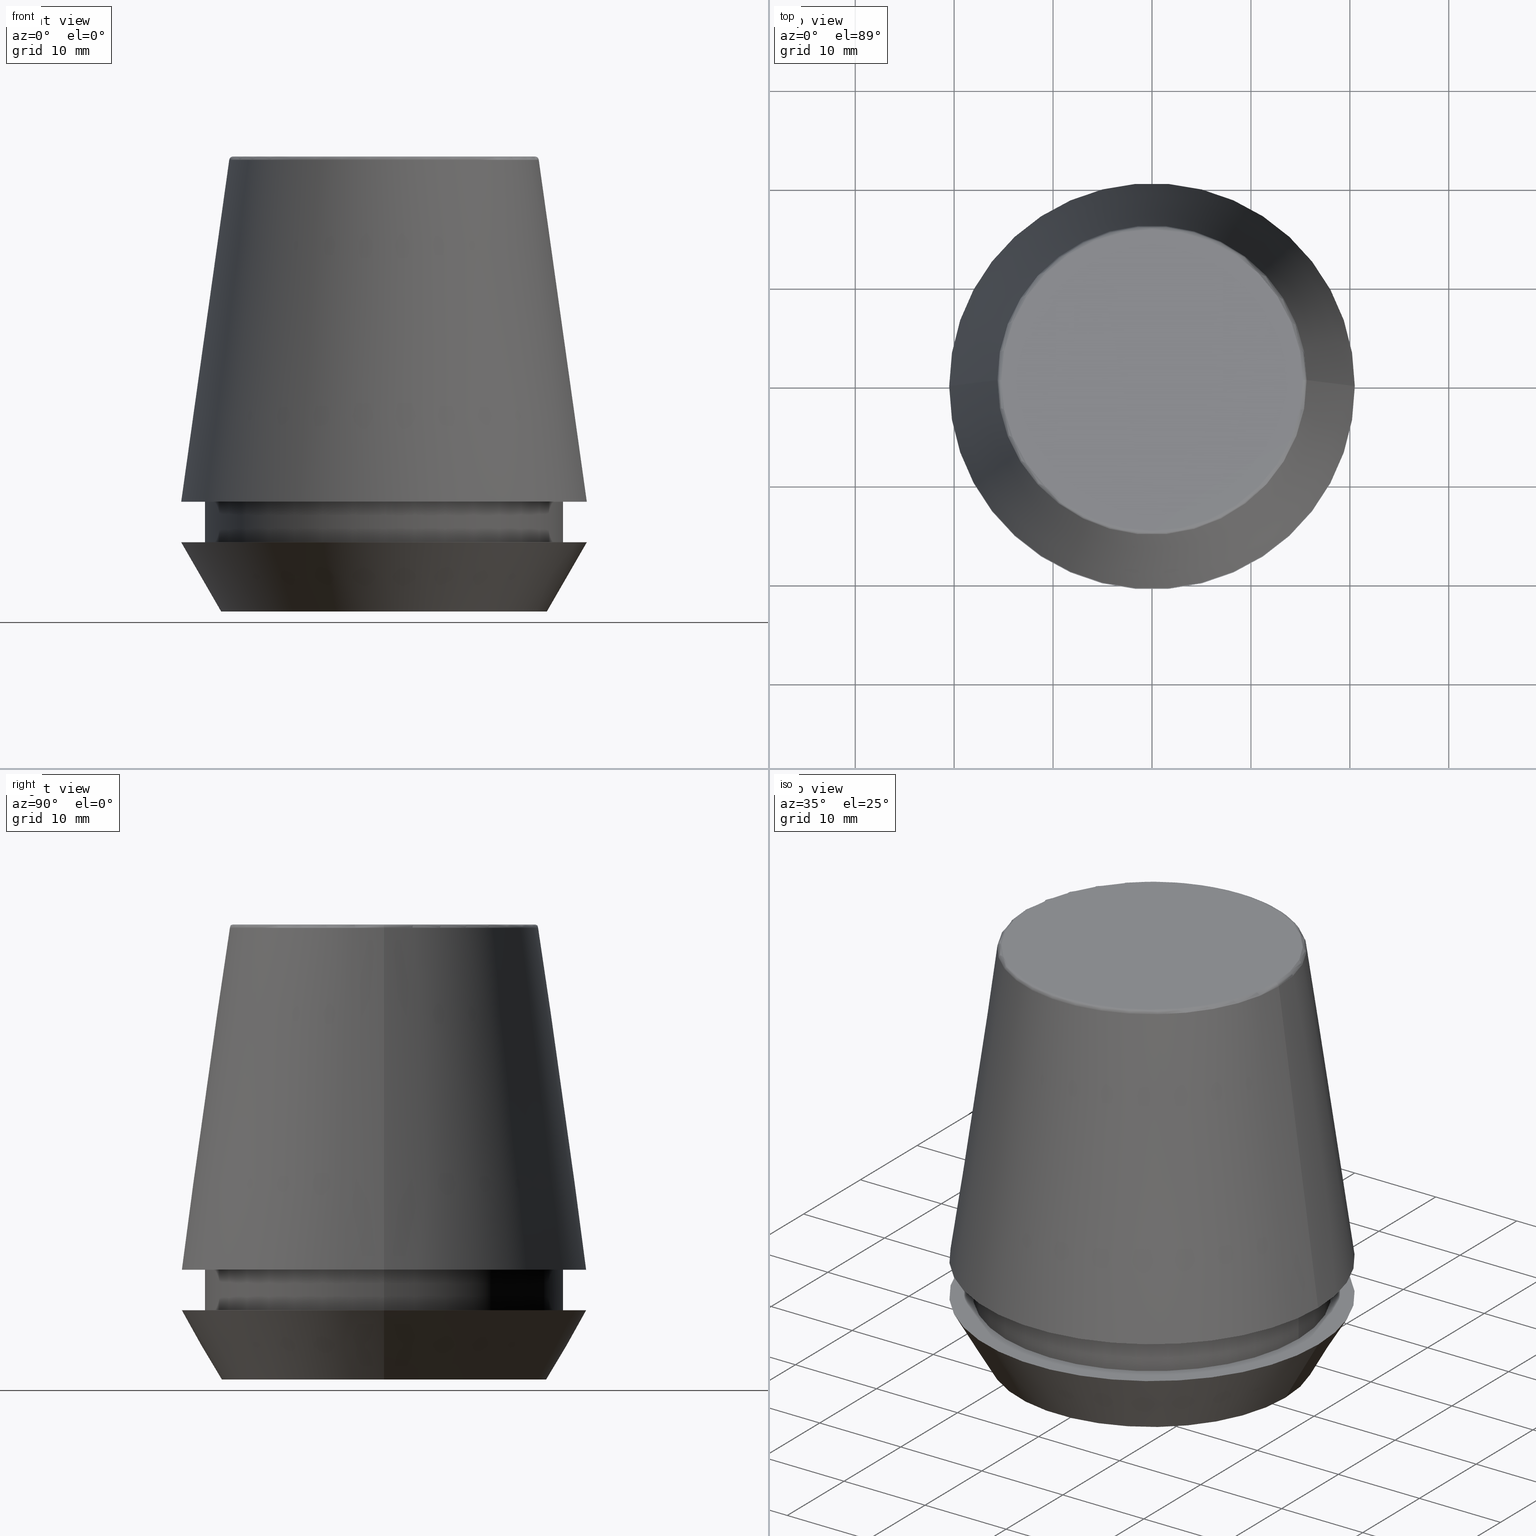
[diagram: canonical four-view strip — front | top / right | iso, engineering-drawing reading convention]
A machine part, canonical four-view strip (front | top / right | iso — engineering-drawing reading convention). The complete STEP part file that produces these views, byte-faithful:
ISO-10303-21;
HEADER;
FILE_DESCRIPTION (( 'STEP AP203' ),
    '1' );
FILE_NAME ('TAP COLLET ER 40G 7.0 X 5.5.STEP',
    '2019-04-10T03:27:42',
    ( '' ),
    ( '' ),
    'SwSTEP 2.0',
    'SolidWorks 2014',
    '' );
FILE_SCHEMA (( 'CONFIG_CONTROL_DESIGN' ));
ENDSEC;

DATA;
#1 = APPLICATION_PROTOCOL_DEFINITION ( 'international standard', 'config_control_design', 1994, #225 ) ;
#2 = EDGE_LOOP ( 'NONE', ( #88, #63 ) ) ;
#3 = CIRCLE ( 'NONE', #266, 0.3999999999999975800 ) ;
#4 = APPROVAL ( #198, 'UNSPECIFIED' ) ;
#5 = EDGE_CURVE ( 'NONE', #64, #313, #369, .T. ) ;
#6 = COORDINATED_UNIVERSAL_TIME_OFFSET ( 5, 30, .AHEAD. ) ;
#7 = APPROVAL_PERSON_ORGANIZATION ( #297, #101, #98 ) ;
#8 = VECTOR ( 'NONE', #323, 1000.000000000000000 ) ;
#9 = ORIENTED_EDGE ( 'NONE', *, *, #5, .F. ) ;
#10 = ORIENTED_EDGE ( 'NONE', *, *, #44, .F. ) ;
#11 = CARTESIAN_POINT ( 'NONE',  ( 0.0000000000000000000, 0.0000000000000000000, 7.000000000000006200 ) ) ;
#12 = PRODUCT_DEFINITION ( 'UNKNOWN', '', #32, #356 ) ;
#13 = CARTESIAN_POINT ( 'NONE',  ( 0.0000000000000000000, 0.0000000000000000000, 0.0000000000000000000 ) ) ;
#14 = DIRECTION ( 'NONE',  ( -0.0000000000000000000, -0.0000000000000000000, 1.000000000000000000 ) ) ;
#15 = CARTESIAN_POINT ( 'NONE',  ( 0.0000000000000000000, 0.0000000000000000000, 7.000000000000006200 ) ) ;
#16 = ORIENTED_EDGE ( 'NONE', *, *, #378, .F. ) ;
#17 = DIRECTION ( 'NONE',  ( 0.0000000000000000000, 0.0000000000000000000, -1.000000000000000000 ) ) ;
#18 = CONICAL_SURFACE ( 'NONE', #240, 20.50032537154048700, 0.1396263401595396200 ) ;
#19 = CARTESIAN_POINT ( 'NONE',  ( -18.10000000000000500, 2.216610706456710000E-015, 46.00000000000000000 ) ) ;
#20 = CLOSED_SHELL ( 'NONE', ( #314, #347, #80, #340, #285, #109, #46, #210, #338, #228, #74, #254 ) ) ;
#21 = EDGE_CURVE ( 'NONE', #107, #166, #60, .T. ) ;
#22 = DIRECTION ( 'NONE',  ( 1.000000000000000000, 0.0000000000000000000, 0.0000000000000000000 ) ) ;
#23 = ORIENTED_EDGE ( 'NONE', *, *, #378, .T. ) ;
#24 = DIRECTION ( 'NONE',  ( 0.0000000000000000000, -0.0000000000000000000, 1.000000000000000000 ) ) ;
#25 = CARTESIAN_POINT ( 'NONE',  ( 0.0000000000000000000, 20.50032537154048700, 11.09999999999999800 ) ) ;
#26 = CC_DESIGN_PERSON_AND_ORGANIZATION_ASSIGNMENT ( #175, #334, ( #12 ) ) ;
#27 = CARTESIAN_POINT ( 'NONE',  ( -20.50032537154048700, 0.0000000000000000000, 11.09999999999999800 ) ) ;
#28 = DATE_TIME_ROLE ( 'classification_date' ) ;
#29 = PERSON_AND_ORGANIZATION_ROLE ( 'design_owner' ) ;
#30 = ORIENTED_EDGE ( 'NONE', *, *, #78, .T. ) ;
#31 = VERTEX_POINT ( 'NONE', #179 ) ;
#32 = PRODUCT_DEFINITION_FORMATION_WITH_SPECIFIED_SOURCE ( 'ANY', '', #76, .NOT_KNOWN. ) ;
#33 = ORIENTED_EDGE ( 'NONE', *, *, #168, .T. ) ;
#34 = DATE_AND_TIME ( #77, #47 ) ;
#35 = VECTOR ( 'NONE', #360, 1000.000000000000000 ) ;
#36 = ORIENTED_EDGE ( 'NONE', *, *, #66, .T. ) ;
#37 = ORIENTED_EDGE ( 'NONE', *, *, #21, .F. ) ;
#38 = AXIS2_PLACEMENT_3D ( 'NONE', #140, #171, #271 ) ;
#39 = CARTESIAN_POINT ( 'NONE',  ( 0.0000000000000000000, 0.0000000000000000000, 45.65566924038402900 ) ) ;
#40 = APPROVAL_PERSON_ORGANIZATION ( #53, #215, #305 ) ;
#41 = CC_DESIGN_APPROVAL ( #215, ( #32 ) ) ;
#42 = CIRCLE ( 'NONE', #274, 20.50032537154048700 ) ;
#43 = CARTESIAN_POINT ( 'NONE',  ( 20.50032537154048700, 2.510565784773633700E-015, 11.09999999999999800 ) ) ;
#44 = EDGE_CURVE ( 'NONE', #313, #64, #42, .T. ) ;
#45 = DIRECTION ( 'NONE',  ( -0.0000000000000000000, -0.0000000000000000000, 1.000000000000000000 ) ) ;
#46 = ADVANCED_FACE ( 'NONE', ( #203, #58 ), #224, .F. ) ;
#47 = LOCAL_TIME ( 8, 57, 42.00000000000000000, #386 ) ;
#48 = APPROVAL_DATE_TIME ( #308, #215 ) ;
#49 = AXIS2_PLACEMENT_3D ( 'NONE', #162, #253, #50 ) ;
#50 = DIRECTION ( 'NONE',  ( -1.000000000000000000, 0.0000000000000000000, 0.0000000000000000000 ) ) ;
#51 = PLANE ( 'NONE',  #370 ) ;
#52 = EDGE_LOOP ( 'NONE', ( #227, #374 ) ) ;
#53 = PERSON_AND_ORGANIZATION ( #122, #273 ) ;
#54 = CARTESIAN_POINT ( 'NONE',  ( -16.45854811567268100, 2.015590826847124800E-015, 0.0000000000000000000 ) ) ;
#55 = CALENDAR_DATE ( 2019, 10, 4 ) ;
#56 = DIRECTION ( 'NONE',  ( 0.4999999999999941700, 0.0000000000000000000, 0.8660254037844420400 ) ) ;
#57 = AXIS2_PLACEMENT_3D ( 'NONE', #290, #125, #324 ) ;
#58 = FACE_OUTER_BOUND ( 'NONE', #104, .T. ) ;
#59 = CARTESIAN_POINT ( 'NONE',  ( 15.24773554530077600, 0.0000000000000000000, 45.60000000000000100 ) ) ;
#60 = CIRCLE ( 'NONE', #307, 18.10000000000000500 ) ;
#61 = ORIENTED_EDGE ( 'NONE', *, *, #206, .T. ) ;
#62 = SECURITY_CLASSIFICATION_LEVEL ( 'unclassified' ) ;
#63 = ORIENTED_EDGE ( 'NONE', *, *, #236, .F. ) ;
#64 = VERTEX_POINT ( 'NONE', #153 ) ;
#65 = MECHANICAL_CONTEXT ( 'NONE', #362, 'mechanical' ) ;
#66 = EDGE_CURVE ( 'NONE', #146, #302, #201, .T. ) ;
#67 = EDGE_LOOP ( 'NONE', ( #157, #73, #118, #85 ) ) ;
#68 = APPROVAL_DATE_TIME ( #34, #4 ) ;
#69 = EDGE_CURVE ( 'NONE', #31, #142, #163, .T. ) ;
#70 = VERTEX_POINT ( 'NONE', #188 ) ;
#71 = PRODUCT_DEFINITION_SHAPE ( 'NONE', 'NONE',  #12 ) ;
#72 = AXIS2_PLACEMENT_3D ( 'NONE', #123, #373, #120 ) ;
#73 = ORIENTED_EDGE ( 'NONE', *, *, #298, .T. ) ;
#74 = ADVANCED_FACE ( 'NONE', ( #349 ), #367, .T. ) ;
#75 = COORDINATED_UNIVERSAL_TIME_OFFSET ( 5, 30, .AHEAD. ) ;
#76 = PRODUCT ( 'TAP COLLET ER 40G 7.0 X 5.5', 'TAP COLLET ER 40G 7.0 X 5.5', '', ( #65 ) ) ;
#77 = CALENDAR_DATE ( 2019, 10, 4 ) ;
#78 = EDGE_CURVE ( 'NONE', #70, #64, #200, .T. ) ;
#79 = DIRECTION ( 'NONE',  ( -0.0000000000000000000, -0.0000000000000000000, 1.000000000000000000 ) ) ;
#80 = ADVANCED_FACE ( 'NONE', ( #150 ), #176, .T. ) ;
#81 = DIRECTION ( 'NONE',  ( 1.000000000000000000, 0.0000000000000000000, 0.0000000000000000000 ) ) ;
#82 = AXIS2_PLACEMENT_3D ( 'NONE', #13, #229, #277 ) ;
#83 = EDGE_CURVE ( 'NONE', #368, #107, #207, .T. ) ;
#84 = DIRECTION ( 'NONE',  ( -0.0000000000000000000, -0.0000000000000000000, 1.000000000000000000 ) ) ;
#85 = ORIENTED_EDGE ( 'NONE', *, *, #318, .F. ) ;
#86 = ORIENTED_EDGE ( 'NONE', *, *, #66, .F. ) ;
#87 = PLANE ( 'NONE',  #309 ) ;
#88 = ORIENTED_EDGE ( 'NONE', *, *, #161, .F. ) ;
#89 = EDGE_CURVE ( 'NONE', #368, #141, #159, .T. ) ;
#90 = DIRECTION ( 'NONE',  ( 0.0000000000000000000, -0.0000000000000000000, 1.000000000000000000 ) ) ;
#91 = ORIENTED_EDGE ( 'NONE', *, *, #298, .F. ) ;
#92 = EDGE_LOOP ( 'NONE', ( #172, #380 ) ) ;
#93 = CARTESIAN_POINT ( 'NONE',  ( -18.10000000000000100, 2.216610706456709600E-015, 6.999999999999999100 ) ) ;
#94 = DATE_AND_TIME ( #310, #286 ) ;
#95 = ORIENTED_EDGE ( 'NONE', *, *, #249, .F. ) ;
#96 = DIRECTION ( 'NONE',  ( 0.0000000000000000000, 0.0000000000000000000, -1.000000000000000000 ) ) ;
#97 = PERSON_AND_ORGANIZATION_ROLE ( 'creator' ) ;
#98 = APPROVAL_ROLE ( '' ) ;
#99 = ORIENTED_EDGE ( 'NONE', *, *, #44, .T. ) ;
#100 = EDGE_LOOP ( 'NONE', ( #155, #30, #135, #16 ) ) ;
#101 = APPROVAL ( #246, 'UNSPECIFIED' ) ;
#102 = VECTOR ( 'NONE', #56, 1000.000000000000000 ) ;
#103 = VECTOR ( 'NONE', #211, 1000.000000000000000 ) ;
#104 = EDGE_LOOP ( 'NONE', ( #270, #33 ) ) ;
#105 = CC_DESIGN_PERSON_AND_ORGANIZATION_ASSIGNMENT ( #264, #97, ( #32 ) ) ;
#106 = ORIENTED_EDGE ( 'NONE', *, *, #143, .F. ) ;
#107 = VERTEX_POINT ( 'NONE', #189 ) ;
#108 = EDGE_LOOP ( 'NONE', ( #322, #95, #23, #99 ) ) ;
#109 = ADVANCED_FACE ( 'NONE', ( #170 ), #186, .T. ) ;
#110 = ORIENTED_EDGE ( 'NONE', *, *, #139, .T. ) ;
#111 = EDGE_CURVE ( 'NONE', #166, #107, #312, .T. ) ;
#112 = EDGE_LOOP ( 'NONE', ( #36, #292 ) ) ;
#113 = DIRECTION ( 'NONE',  ( 1.000000000000000000, 0.0000000000000000000, 0.0000000000000000000 ) ) ;
#114 = EDGE_LOOP ( 'NONE', ( #106, #185, #376, #339 ) ) ;
#115 = CARTESIAN_POINT ( 'NONE',  ( 0.0000000000000000000, 20.50000000000000000, 7.000000000000002700 ) ) ;
#116 = CC_DESIGN_DATE_AND_TIME_ASSIGNMENT ( #336, #28, ( #230 ) ) ;
#117 = ORIENTED_EDGE ( 'NONE', *, *, #89, .T. ) ;
#118 = ORIENTED_EDGE ( 'NONE', *, *, #69, .F. ) ;
#119 = EDGE_LOOP ( 'NONE', ( #372, #117, #110, #37 ) ) ;
#120 = DIRECTION ( 'NONE',  ( 1.000000000000000000, 0.0000000000000000000, 0.0000000000000000000 ) ) ;
#121 = EDGE_LOOP ( 'NONE', ( #164, #197, #182, #325 ) ) ;
#122 = PERSON ( 'UNSPECIFIED', 'UNSPECIFIED', 'UNSPECIFIED', ('UNSPECIFIED'), ('UNSPECIFIED'), ('UNSPECIFIED') ) ;
#123 = CARTESIAN_POINT ( 'NONE',  ( 0.0000000000000000000, 0.0000000000000000000, 0.0000000000000000000 ) ) ;
#124 = CARTESIAN_POINT ( 'NONE',  ( -20.50000000000000000, 2.510525938252074100E-015, 7.000000000000006200 ) ) ;
#125 = DIRECTION ( 'NONE',  ( 1.224646799147353200E-016, 1.000000000000000000, 0.0000000000000000000 ) ) ;
#126 = ORIENTED_EDGE ( 'NONE', *, *, #318, .T. ) ;
#127 = AXIS2_PLACEMENT_3D ( 'NONE', #39, #128, #326 ) ;
#128 = DIRECTION ( 'NONE',  ( -0.0000000000000000000, -0.0000000000000000000, 1.000000000000000000 ) ) ;
#129 = DIRECTION ( 'NONE',  ( -0.0000000000000000000, -0.0000000000000000000, 1.000000000000000000 ) ) ;
#130 = FACE_OUTER_BOUND ( 'NONE', #151, .T. ) ;
#131 = CARTESIAN_POINT ( 'NONE',  ( 0.0000000000000000000, 0.0000000000000000000, 0.0000000000000000000 ) ) ;
#132 = CARTESIAN_POINT ( 'NONE',  ( 0.0000000000000000000, 0.0000000000000000000, 46.00000000000000000 ) ) ;
#133 =( NAMED_UNIT ( * ) PLANE_ANGLE_UNIT ( ) SI_UNIT ( $, .RADIAN. ) );
#134 = VERTEX_POINT ( 'NONE', #239 ) ;
#135 = ORIENTED_EDGE ( 'NONE', *, *, #5, .T. ) ;
#136 = APPROVAL_STATUS ( 'not_yet_approved' ) ;
#137 = ORIENTED_EDGE ( 'NONE', *, *, #236, .T. ) ;
#138 = VERTEX_POINT ( 'NONE', #238 ) ;
#139 = EDGE_CURVE ( 'NONE', #141, #166, #250, .T. ) ;
#140 = CARTESIAN_POINT ( 'NONE',  ( 0.0000000000000000000, 0.0000000000000000000, 11.09999999999999800 ) ) ;
#141 = VERTEX_POINT ( 'NONE', #213 ) ;
#142 = VERTEX_POINT ( 'NONE', #124 ) ;
#143 = EDGE_CURVE ( 'NONE', #134, #302, #320, .T. ) ;
#144 = AXIS2_PLACEMENT_3D ( 'NONE', #25, #90, #299 ) ;
#145 = CONICAL_SURFACE ( 'NONE', #49, 20.50032537154048700, 0.1396263401595396200 ) ;
#146 = VERTEX_POINT ( 'NONE', #383 ) ;
#147 = VECTOR ( 'NONE', #279, 1000.000000000000000 ) ;
#148 = CARTESIAN_POINT ( 'NONE',  ( 18.10000000000000500, 0.0000000000000000000, 11.09999999999999800 ) ) ;
#149 = ORIENTED_EDGE ( 'NONE', *, *, #384, .F. ) ;
#150 = FACE_OUTER_BOUND ( 'NONE', #121, .T. ) ;
#151 = EDGE_LOOP ( 'NONE', ( #61, #248, #86, #149 ) ) ;
#152 = CC_DESIGN_PERSON_AND_ORGANIZATION_ASSIGNMENT ( #381, #29, ( #76 ) ) ;
#153 = CARTESIAN_POINT ( 'NONE',  ( 20.50032537154048700, 2.510565784773633700E-015, 11.09999999999999800 ) ) ;
#154 = FACE_OUTER_BOUND ( 'NONE', #112, .T. ) ;
#155 = ORIENTED_EDGE ( 'NONE', *, *, #206, .F. ) ;
#156 = CARTESIAN_POINT ( 'NONE',  ( 0.0000000000000000000, 0.0000000000000000000, 6.999999999999999100 ) ) ;
#157 = ORIENTED_EDGE ( 'NONE', *, *, #161, .T. ) ;
#158 = DIRECTION ( 'NONE',  ( 1.000000000000000000, 0.0000000000000000000, 0.0000000000000000000 ) ) ;
#159 = CIRCLE ( 'NONE', #181, 18.10000000000000100 ) ;
#160 = CARTESIAN_POINT ( 'NONE',  ( 0.0000000000000000000, 0.0000000000000000000, 0.0000000000000000000 ) ) ;
#161 = EDGE_CURVE ( 'NONE', #217, #138, #301, .T. ) ;
#162 = CARTESIAN_POINT ( 'NONE',  ( 0.0000000000000000000, 0.0000000000000000000, 11.09999999999999800 ) ) ;
#163 = CIRCLE ( 'NONE', #328, 20.50000000000000000 ) ;
#164 = ORIENTED_EDGE ( 'NONE', *, *, #184, .T. ) ;
#165 = DIRECTION ( 'NONE',  ( 0.0000000000000000000, 0.0000000000000000000, -1.000000000000000000 ) ) ;
#166 = VERTEX_POINT ( 'NONE', #148 ) ;
#167 = DIRECTION ( 'NONE',  ( -1.000000000000000000, 0.0000000000000000000, 0.0000000000000000000 ) ) ;
#168 = EDGE_CURVE ( 'NONE', #142, #31, #275, .T. ) ;
#169 = DIRECTION ( 'NONE',  ( 1.000000000000000000, 0.0000000000000000000, 0.0000000000000000000 ) ) ;
#170 = FACE_OUTER_BOUND ( 'NONE', #177, .T. ) ;
#171 = DIRECTION ( 'NONE',  ( -0.0000000000000000000, -0.0000000000000000000, 1.000000000000000000 ) ) ;
#172 = ORIENTED_EDGE ( 'NONE', *, *, #111, .T. ) ;
#173 = DATE_TIME_ROLE ( 'creation_date' ) ;
#174 = AXIS2_PLACEMENT_3D ( 'NONE', #11, #202, #113 ) ;
#175 = PERSON_AND_ORGANIZATION ( #122, #273 ) ;
#176 = CYLINDRICAL_SURFACE ( 'NONE', #352, 18.10000000000000500 ) ;
#177 = EDGE_LOOP ( 'NONE', ( #91, #137, #126, #319 ) ) ;
#178 = CC_DESIGN_PERSON_AND_ORGANIZATION_ASSIGNMENT ( #327, #223, ( #230 ) ) ;
#179 = CARTESIAN_POINT ( 'NONE',  ( 20.50000000000000000, 0.0000000000000000000, 7.000000000000006200 ) ) ;
#180 = FACE_OUTER_BOUND ( 'NONE', #67, .T. ) ;
#181 = AXIS2_PLACEMENT_3D ( 'NONE', #156, #321, #205 ) ;
#182 = ORIENTED_EDGE ( 'NONE', *, *, #111, .F. ) ;
#183 = TOROIDAL_SURFACE ( 'NONE', #280, 15.24773554530077600, 0.3999999999999991900 ) ;
#184 = EDGE_CURVE ( 'NONE', #141, #368, #187, .T. ) ;
#185 = ORIENTED_EDGE ( 'NONE', *, *, #249, .T. ) ;
#186 = CONICAL_SURFACE ( 'NONE', #72, 16.45854811567268100, 0.5235987755982921500 ) ;
#187 = CIRCLE ( 'NONE', #204, 18.10000000000000100 ) ;
#188 = CARTESIAN_POINT ( 'NONE',  ( 15.64384277279740400, 2.213191991290356800E-015, 45.65566924038402900 ) ) ;
#189 = CARTESIAN_POINT ( 'NONE',  ( -18.10000000000000500, 2.216610706456710000E-015, 11.09999999999999800 ) ) ;
#190 = CARTESIAN_POINT ( 'NONE',  ( 0.0000000000000000000, 0.0000000000000000000, 11.09999999999999800 ) ) ;
#191 = AXIS2_PLACEMENT_3D ( 'NONE', #160, #214, #350 ) ;
#192 = CARTESIAN_POINT ( 'NONE',  ( -15.24773554530077600, 1.891563625393435400E-015, 46.00000000000000000 ) ) ;
#193 = AXIS2_PLACEMENT_3D ( 'NONE', #196, #300, #272 ) ;
#194 = DIRECTION ( 'NONE',  ( 1.000000000000000000, 0.0000000000000000000, 0.0000000000000000000 ) ) ;
#195 = DIRECTION ( 'NONE',  ( 0.0000000000000000000, 0.0000000000000000000, -1.000000000000000000 ) ) ;
#196 = CARTESIAN_POINT ( 'NONE',  ( 0.0000000000000000000, 0.0000000000000000000, 0.0000000000000000000 ) ) ;
#197 = ORIENTED_EDGE ( 'NONE', *, *, #83, .T. ) ;
#198 = APPROVAL_STATUS ( 'not_yet_approved' ) ;
#199 = AXIS2_PLACEMENT_3D ( 'NONE', #115, #17, #209 ) ;
#200 = LINE ( 'NONE', #43, #147 ) ;
#201 = CIRCLE ( 'NONE', #282, 15.24773554530077600 ) ;
#202 = DIRECTION ( 'NONE',  ( -0.0000000000000000000, -0.0000000000000000000, 1.000000000000000000 ) ) ;
#203 = FACE_BOUND ( 'NONE', #52, .T. ) ;
#204 = AXIS2_PLACEMENT_3D ( 'NONE', #259, #84, #291 ) ;
#205 = DIRECTION ( 'NONE',  ( 1.000000000000000000, 0.0000000000000000000, 0.0000000000000000000 ) ) ;
#206 = EDGE_CURVE ( 'NONE', #70, #134, #306, .T. ) ;
#207 = LINE ( 'NONE', #19, #103 ) ;
#208 = DIRECTION ( 'NONE',  ( -0.0000000000000000000, -0.0000000000000000000, 1.000000000000000000 ) ) ;
#209 = DIRECTION ( 'NONE',  ( -1.000000000000000000, 0.0000000000000000000, -0.0000000000000000000 ) ) ;
#210 = ADVANCED_FACE ( 'NONE', ( #316 ), #304, .T. ) ;
#211 = DIRECTION ( 'NONE',  ( -0.0000000000000000000, -0.0000000000000000000, 1.000000000000000000 ) ) ;
#212 = LINE ( 'NONE', #244, #102 ) ;
#213 = CARTESIAN_POINT ( 'NONE',  ( 18.10000000000000100, 0.0000000000000000000, 6.999999999999999100 ) ) ;
#214 = DIRECTION ( 'NONE',  ( -0.0000000000000000000, -0.0000000000000000000, 1.000000000000000000 ) ) ;
#215 = APPROVAL ( #136, 'UNSPECIFIED' ) ;
#216 = DIRECTION ( 'NONE',  ( -0.4999999999999941700, 6.123233995736694500E-017, 0.8660254037844420400 ) ) ;
#217 = VERTEX_POINT ( 'NONE', #351 ) ;
#218 = AXIS2_PLACEMENT_3D ( 'NONE', #132, #332, #169 ) ;
#219 = CARTESIAN_POINT ( 'NONE',  ( 0.0000000000000000000, 0.0000000000000000000, 11.09999999999999800 ) ) ;
#220 = PRODUCT_RELATED_PRODUCT_CATEGORY ( 'detail', '', ( #76 ) ) ;
#221 = LINE ( 'NONE', #54, #361 ) ;
#222 = SHAPE_DEFINITION_REPRESENTATION ( #71, #232 ) ;
#223 = PERSON_AND_ORGANIZATION_ROLE ( 'classification_officer' ) ;
#224 = PLANE ( 'NONE',  #199 ) ;
#225 = APPLICATION_CONTEXT ( 'configuration controlled 3d designs of mechanical parts and assemblies' ) ;
#226 = APPROVAL_DATE_TIME ( #94, #101 ) ;
#227 = ORIENTED_EDGE ( 'NONE', *, *, #184, .F. ) ;
#228 = ADVANCED_FACE ( 'NONE', ( #276 ), #145, .T. ) ;
#229 = DIRECTION ( 'NONE',  ( -0.0000000000000000000, -0.0000000000000000000, 1.000000000000000000 ) ) ;
#230 = SECURITY_CLASSIFICATION ( '', '', #62 ) ;
#231 = LOCAL_TIME ( 8, 57, 42.00000000000000000, #75 ) ;
#232 = ADVANCED_BREP_SHAPE_REPRESENTATION ( 'TAP COLLET ER 40G 7.0 X 5.5', ( #377, #193 ), #243 ) ;
#233 = DIRECTION ( 'NONE',  ( 1.000000000000000000, 0.0000000000000000000, 0.0000000000000000000 ) ) ;
#234 = AXIS2_PLACEMENT_3D ( 'NONE', #190, #348, #158 ) ;
#235 = DIRECTION ( 'NONE',  ( -0.0000000000000000000, -0.0000000000000000000, 1.000000000000000000 ) ) ;
#236 = EDGE_CURVE ( 'NONE', #138, #217, #354, .T. ) ;
#237 = DIRECTION ( 'NONE',  ( -0.0000000000000000000, -0.0000000000000000000, 1.000000000000000000 ) ) ;
#238 = CARTESIAN_POINT ( 'NONE',  ( -16.45854811567268100, 2.263058382549599700E-015, 0.0000000000000000000 ) ) ;
#239 = CARTESIAN_POINT ( 'NONE',  ( -15.64384277279740400, 0.0000000000000000000, 45.65566924038402900 ) ) ;
#240 = AXIS2_PLACEMENT_3D ( 'NONE', #219, #195, #167 ) ;
#241 = CARTESIAN_POINT ( 'NONE',  ( 0.0000000000000000000, 0.0000000000000000000, 0.0000000000000000000 ) ) ;
#242 = DIRECTION ( 'NONE',  ( 1.000000000000000000, 0.0000000000000000000, 0.0000000000000000000 ) ) ;
#243 =( GEOMETRIC_REPRESENTATION_CONTEXT ( 3 ) GLOBAL_UNCERTAINTY_ASSIGNED_CONTEXT ( ( #294 ) ) GLOBAL_UNIT_ASSIGNED_CONTEXT ( ( #303, #133, #333 ) ) REPRESENTATION_CONTEXT ( 'NONE', 'WORKASPACE' ) );
#244 = CARTESIAN_POINT ( 'NONE',  ( 16.45854811567268100, 0.0000000000000000000, 0.0000000000000000000 ) ) ;
#245 = CALENDAR_DATE ( 2019, 10, 4 ) ;
#246 = APPROVAL_STATUS ( 'not_yet_approved' ) ;
#247 = APPLICATION_PROTOCOL_DEFINITION ( 'international standard', 'config_control_design', 1994, #362 ) ;
#248 = ORIENTED_EDGE ( 'NONE', *, *, #143, .T. ) ;
#249 = EDGE_CURVE ( 'NONE', #134, #70, #335, .T. ) ;
#250 = LINE ( 'NONE', #287, #8 ) ;
#251 = CC_DESIGN_SECURITY_CLASSIFICATION ( #230, ( #32 ) ) ;
#252 = CARTESIAN_POINT ( 'NONE',  ( 0.0000000000000000000, 0.0000000000000000000, 46.00000000000000000 ) ) ;
#253 = DIRECTION ( 'NONE',  ( 0.0000000000000000000, 0.0000000000000000000, -1.000000000000000000 ) ) ;
#254 = ADVANCED_FACE ( 'NONE', ( #154 ), #51, .F. ) ;
#255 = CC_DESIGN_PERSON_AND_ORGANIZATION_ASSIGNMENT ( #260, #269, ( #32 ) ) ;
#256 = DIRECTION ( 'NONE',  ( 1.000000000000000000, 0.0000000000000000000, 0.0000000000000000000 ) ) ;
#257 = LOCAL_TIME ( 8, 57, 42.00000000000000000, #288 ) ;
#258 = CARTESIAN_POINT ( 'NONE',  ( 0.0000000000000000000, 0.0000000000000000000, 11.09999999999999800 ) ) ;
#259 = CARTESIAN_POINT ( 'NONE',  ( 0.0000000000000000000, 0.0000000000000000000, 6.999999999999999100 ) ) ;
#260 = PERSON_AND_ORGANIZATION ( #122, #273 ) ;
#261 = CC_DESIGN_DATE_AND_TIME_ASSIGNMENT ( #357, #173, ( #12 ) ) ;
#262 = DIRECTION ( 'NONE',  ( 1.000000000000000000, 0.0000000000000000000, 0.0000000000000000000 ) ) ;
#263 = COORDINATED_UNIVERSAL_TIME_OFFSET ( 5, 30, .AHEAD. ) ;
#264 = PERSON_AND_ORGANIZATION ( #122, #273 ) ;
#265 = DIRECTION ( 'NONE',  ( -0.0000000000000000000, -0.0000000000000000000, 1.000000000000000000 ) ) ;
#266 = AXIS2_PLACEMENT_3D ( 'NONE', #59, #267, #96 ) ;
#267 = DIRECTION ( 'NONE',  ( 0.0000000000000000000, -1.000000000000000000, 0.0000000000000000000 ) ) ;
#268 = CARTESIAN_POINT ( 'NONE',  ( 0.0000000000000000000, 0.0000000000000000000, 11.09999999999999800 ) ) ;
#269 = PERSON_AND_ORGANIZATION_ROLE ( 'design_supplier' ) ;
#270 = ORIENTED_EDGE ( 'NONE', *, *, #69, .T. ) ;
#271 = DIRECTION ( 'NONE',  ( 1.000000000000000000, 0.0000000000000000000, 0.0000000000000000000 ) ) ;
#272 = DIRECTION ( 'NONE',  ( 1.000000000000000000, 0.0000000000000000000, 0.0000000000000000000 ) ) ;
#273 = ORGANIZATION ( 'UNSPECIFIED', 'UNSPECIFIED', '' ) ;
#274 = AXIS2_PLACEMENT_3D ( 'NONE', #258, #237, #81 ) ;
#275 = CIRCLE ( 'NONE', #174, 20.50000000000000000 ) ;
#276 = FACE_OUTER_BOUND ( 'NONE', #108, .T. ) ;
#277 = DIRECTION ( 'NONE',  ( 1.000000000000000000, 0.0000000000000000000, 0.0000000000000000000 ) ) ;
#278 = CONICAL_SURFACE ( 'NONE', #337, 16.45854811567268100, 0.5235987755982921500 ) ;
#279 = DIRECTION ( 'NONE',  ( 0.1391731009600587200, 1.704378926181473400E-017, -0.9902680687415712500 ) ) ;
#280 = AXIS2_PLACEMENT_3D ( 'NONE', #330, #358, #194 ) ;
#281 = CARTESIAN_POINT ( 'NONE',  ( 0.0000000000000000000, 0.0000000000000000000, 46.00000000000000000 ) ) ;
#282 = AXIS2_PLACEMENT_3D ( 'NONE', #281, #79, #256 ) ;
#283 = DIRECTION ( 'NONE',  ( 1.000000000000000000, 0.0000000000000000000, 0.0000000000000000000 ) ) ;
#284 = FACE_OUTER_BOUND ( 'NONE', #100, .T. ) ;
#285 = ADVANCED_FACE ( 'NONE', ( #315 ), #87, .F. ) ;
#286 = LOCAL_TIME ( 8, 57, 42.00000000000000000, #6 ) ;
#287 = CARTESIAN_POINT ( 'NONE',  ( 18.10000000000000500, 0.0000000000000000000, 46.00000000000000000 ) ) ;
#288 = COORDINATED_UNIVERSAL_TIME_OFFSET ( 5, 30, .AHEAD. ) ;
#289 = PERSON_AND_ORGANIZATION ( #122, #273 ) ;
#290 = CARTESIAN_POINT ( 'NONE',  ( -15.24773554530077600, 1.867309052979791600E-015, 45.60000000000000100 ) ) ;
#291 = DIRECTION ( 'NONE',  ( 1.000000000000000000, 0.0000000000000000000, 0.0000000000000000000 ) ) ;
#292 = ORIENTED_EDGE ( 'NONE', *, *, #359, .T. ) ;
#293 = CARTESIAN_POINT ( 'NONE',  ( 0.0000000000000000000, 0.0000000000000000000, 45.65566924038402900 ) ) ;
#294 = UNCERTAINTY_MEASURE_WITH_UNIT (LENGTH_MEASURE( 1.000000000000000100E-005 ), #303, 'distance_accuracy_value', 'NONE');
#295 = FACE_BOUND ( 'NONE', #92, .T. ) ;
#296 = CARTESIAN_POINT ( 'NONE',  ( -20.50032537154048700, 0.0000000000000000000, 11.09999999999999800 ) ) ;
#297 = PERSON_AND_ORGANIZATION ( #122, #273 ) ;
#298 = EDGE_CURVE ( 'NONE', #138, #142, #221, .T. ) ;
#299 = DIRECTION ( 'NONE',  ( 1.000000000000000000, 0.0000000000000000000, 0.0000000000000000000 ) ) ;
#300 = DIRECTION ( 'NONE',  ( 0.0000000000000000000, 0.0000000000000000000, 1.000000000000000000 ) ) ;
#301 = CIRCLE ( 'NONE', #191, 16.45854811567268100 ) ;
#302 = VERTEX_POINT ( 'NONE', #192 ) ;
#303 =( LENGTH_UNIT ( ) NAMED_UNIT ( * ) SI_UNIT ( .MILLI., .METRE. ) );
#304 = CYLINDRICAL_SURFACE ( 'NONE', #345, 18.10000000000000500 ) ;
#305 = APPROVAL_ROLE ( '' ) ;
#306 = CIRCLE ( 'NONE', #127, 15.64384277279740400 ) ;
#307 = AXIS2_PLACEMENT_3D ( 'NONE', #268, #14, #233 ) ;
#308 = DATE_AND_TIME ( #355, #343 ) ;
#309 = AXIS2_PLACEMENT_3D ( 'NONE', #241, #24, #242 ) ;
#310 = CALENDAR_DATE ( 2019, 10, 4 ) ;
#311 = FACE_OUTER_BOUND ( 'NONE', #382, .T. ) ;
#312 = CIRCLE ( 'NONE', #234, 18.10000000000000500 ) ;
#313 = VERTEX_POINT ( 'NONE', #296 ) ;
#314 = ADVANCED_FACE ( 'NONE', ( #130 ), #183, .T. ) ;
#315 = FACE_OUTER_BOUND ( 'NONE', #2, .T. ) ;
#316 = FACE_OUTER_BOUND ( 'NONE', #119, .T. ) ;
#317 = DIRECTION ( 'NONE',  ( -0.0000000000000000000, -0.0000000000000000000, 1.000000000000000000 ) ) ;
#318 = EDGE_CURVE ( 'NONE', #217, #31, #212, .T. ) ;
#319 = ORIENTED_EDGE ( 'NONE', *, *, #168, .F. ) ;
#320 = CIRCLE ( 'NONE', #57, 0.3999999999999975800 ) ;
#321 = DIRECTION ( 'NONE',  ( -0.0000000000000000000, -0.0000000000000000000, 1.000000000000000000 ) ) ;
#322 = ORIENTED_EDGE ( 'NONE', *, *, #78, .F. ) ;
#323 = DIRECTION ( 'NONE',  ( -0.0000000000000000000, -0.0000000000000000000, 1.000000000000000000 ) ) ;
#324 = DIRECTION ( 'NONE',  ( -1.000000000000000000, 1.224646799147353900E-016, 0.0000000000000000000 ) ) ;
#325 = ORIENTED_EDGE ( 'NONE', *, *, #139, .F. ) ;
#326 = DIRECTION ( 'NONE',  ( 1.000000000000000000, 0.0000000000000000000, 0.0000000000000000000 ) ) ;
#327 = PERSON_AND_ORGANIZATION ( #122, #273 ) ;
#328 = AXIS2_PLACEMENT_3D ( 'NONE', #15, #208, #379 ) ;
#329 = DIRECTION ( 'NONE',  ( 1.000000000000000000, 0.0000000000000000000, 0.0000000000000000000 ) ) ;
#330 = CARTESIAN_POINT ( 'NONE',  ( 0.0000000000000000000, 0.0000000000000000000, 45.60000000000000100 ) ) ;
#331 = AXIS2_PLACEMENT_3D ( 'NONE', #293, #129, #329 ) ;
#332 = DIRECTION ( 'NONE',  ( -0.0000000000000000000, -0.0000000000000000000, 1.000000000000000000 ) ) ;
#333 =( NAMED_UNIT ( * ) SI_UNIT ( $, .STERADIAN. ) SOLID_ANGLE_UNIT ( ) );
#334 = PERSON_AND_ORGANIZATION_ROLE ( 'creator' ) ;
#335 = CIRCLE ( 'NONE', #331, 15.64384277279740400 ) ;
#336 = DATE_AND_TIME ( #245, #257 ) ;
#337 = AXIS2_PLACEMENT_3D ( 'NONE', #131, #265, #262 ) ;
#338 = ADVANCED_FACE ( 'NONE', ( #311, #295 ), #385, .F. ) ;
#339 = ORIENTED_EDGE ( 'NONE', *, *, #359, .F. ) ;
#340 = ADVANCED_FACE ( 'NONE', ( #180 ), #278, .T. ) ;
#341 = CC_DESIGN_APPROVAL ( #4, ( #12 ) ) ;
#342 = CARTESIAN_POINT ( 'NONE',  ( 0.0000000000000000000, 15.24773554530077600, 46.00000000000000000 ) ) ;
#343 = LOCAL_TIME ( 8, 57, 42.00000000000000000, #263 ) ;
#344 = DIRECTION ( 'NONE',  ( 1.000000000000000000, 0.0000000000000000000, 0.0000000000000000000 ) ) ;
#345 = AXIS2_PLACEMENT_3D ( 'NONE', #252, #317, #22 ) ;
#346 = CARTESIAN_POINT ( 'NONE',  ( 0.0000000000000000000, 0.0000000000000000000, 46.00000000000000000 ) ) ;
#347 = ADVANCED_FACE ( 'NONE', ( #284 ), #18, .T. ) ;
#348 = DIRECTION ( 'NONE',  ( -0.0000000000000000000, -0.0000000000000000000, 1.000000000000000000 ) ) ;
#349 = FACE_OUTER_BOUND ( 'NONE', #114, .T. ) ;
#350 = DIRECTION ( 'NONE',  ( 1.000000000000000000, 0.0000000000000000000, 0.0000000000000000000 ) ) ;
#351 = CARTESIAN_POINT ( 'NONE',  ( 16.45854811567268100, 0.0000000000000000000, 0.0000000000000000000 ) ) ;
#352 = AXIS2_PLACEMENT_3D ( 'NONE', #346, #45, #283 ) ;
#353 = DIRECTION ( 'NONE',  ( -1.000000000000000000, 0.0000000000000000000, -0.0000000000000000000 ) ) ;
#354 = CIRCLE ( 'NONE', #82, 16.45854811567268100 ) ;
#355 = CALENDAR_DATE ( 2019, 10, 4 ) ;
#356 = DESIGN_CONTEXT ( 'detailed design', #225, 'design' ) ;
#357 = DATE_AND_TIME ( #55, #231 ) ;
#358 = DIRECTION ( 'NONE',  ( -0.0000000000000000000, -0.0000000000000000000, 1.000000000000000000 ) ) ;
#359 = EDGE_CURVE ( 'NONE', #302, #146, #387, .T. ) ;
#360 = DIRECTION ( 'NONE',  ( -0.1391731009600587200, 0.0000000000000000000, -0.9902680687415712500 ) ) ;
#361 = VECTOR ( 'NONE', #216, 1000.000000000000000 ) ;
#362 = APPLICATION_CONTEXT ( 'configuration controlled 3d designs of mechanical parts and assemblies' ) ;
#363 = APPROVAL_PERSON_ORGANIZATION ( #289, #4, #364 ) ;
#364 = APPROVAL_ROLE ( '' ) ;
#365 = CARTESIAN_POINT ( 'NONE',  ( 0.0000000000000000000, 0.0000000000000000000, 45.60000000000000100 ) ) ;
#366 = CC_DESIGN_APPROVAL ( #101, ( #230 ) ) ;
#367 = TOROIDAL_SURFACE ( 'NONE', #375, 15.24773554530077600, 0.3999999999999991900 ) ;
#368 = VERTEX_POINT ( 'NONE', #93 ) ;
#369 = CIRCLE ( 'NONE', #38, 20.50032537154048700 ) ;
#370 = AXIS2_PLACEMENT_3D ( 'NONE', #342, #165, #353 ) ;
#371 = LINE ( 'NONE', #27, #35 ) ;
#372 = ORIENTED_EDGE ( 'NONE', *, *, #83, .F. ) ;
#373 = DIRECTION ( 'NONE',  ( -0.0000000000000000000, -0.0000000000000000000, 1.000000000000000000 ) ) ;
#374 = ORIENTED_EDGE ( 'NONE', *, *, #89, .F. ) ;
#375 = AXIS2_PLACEMENT_3D ( 'NONE', #365, #235, #344 ) ;
#376 = ORIENTED_EDGE ( 'NONE', *, *, #384, .T. ) ;
#377 = MANIFOLD_SOLID_BREP ( 'Revolve1', #20 ) ;
#378 = EDGE_CURVE ( 'NONE', #134, #313, #371, .T. ) ;
#379 = DIRECTION ( 'NONE',  ( 1.000000000000000000, 0.0000000000000000000, 0.0000000000000000000 ) ) ;
#380 = ORIENTED_EDGE ( 'NONE', *, *, #21, .T. ) ;
#381 = PERSON_AND_ORGANIZATION ( #122, #273 ) ;
#382 = EDGE_LOOP ( 'NONE', ( #10, #9 ) ) ;
#383 = CARTESIAN_POINT ( 'NONE',  ( 15.24773554530077600, 0.0000000000000000000, 46.00000000000000000 ) ) ;
#384 = EDGE_CURVE ( 'NONE', #70, #146, #3, .T. ) ;
#385 = PLANE ( 'NONE',  #144 ) ;
#386 = COORDINATED_UNIVERSAL_TIME_OFFSET ( 5, 30, .AHEAD. ) ;
#387 = CIRCLE ( 'NONE', #218, 15.24773554530077600 ) ;
ENDSEC;
END-ISO-10303-21;
